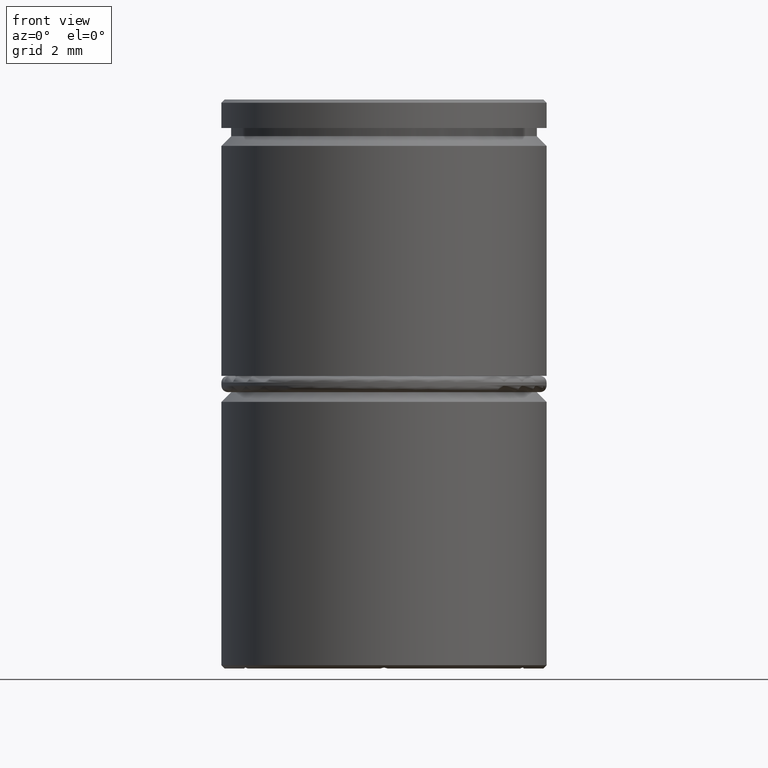
[diagram: clean part render]
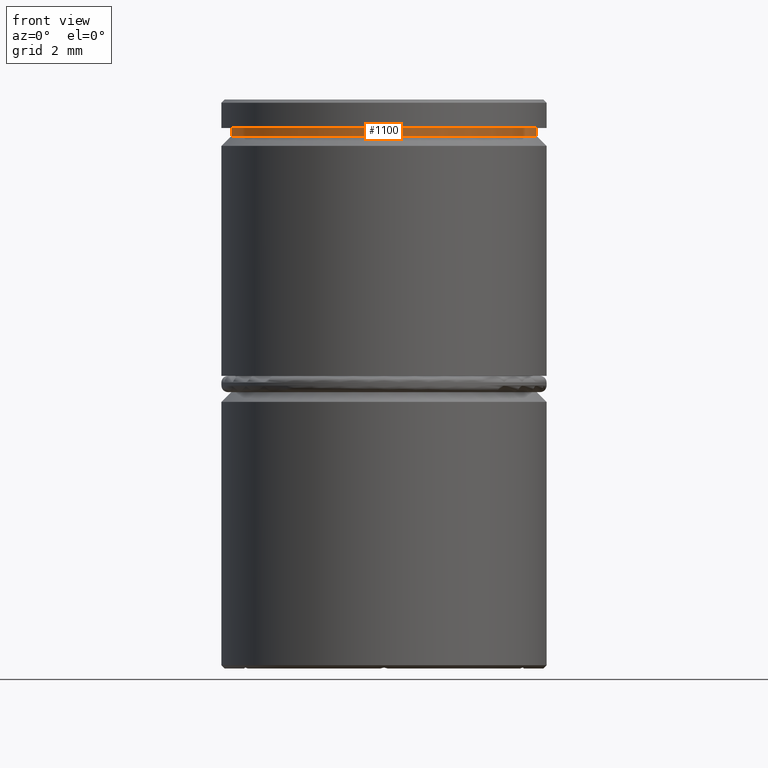
[diagram: same view with one face highlighted and labeled with its STEP entity id]
A machine part, front view. The second image highlights one B-rep face of the part: STEP entity #1100.
In plain terms, the highlighted cylindrical surface (partial cylindrical patch) has radius 4.7 mm, axis along (-0, -0, 1).
Its self-contained STEP definition (entity closure, byte-faithful):
#63 = FACE_OUTER_BOUND ( 'NONE', #602, .T. ) ;
#70 = DIRECTION ( 'NONE',  ( -0.000000000000000000, -0.000000000000000000, 1.000000000000000000 ) ) ;
#104 = DIRECTION ( 'NONE',  ( -0.000000000000000000, -0.000000000000000000, 1.000000000000000000 ) ) ;
#151 = DIRECTION ( 'NONE',  ( -0.000000000000000000, -0.000000000000000000, 1.000000000000000000 ) ) ;
#158 = CARTESIAN_POINT ( 'NONE',  ( -4.700000000000000178, 5.755839955992559655E-16, -1.125000000000000222 ) ) ;
#160 = VECTOR ( 'NONE', #104, 1000.000000000000000 ) ;
#167 = DIRECTION ( 'NONE',  ( 1.000000000000000000, 0.000000000000000000, 0.000000000000000000 ) ) ;
#364 = CYLINDRICAL_SURFACE ( 'NONE', #882, 4.700000000000000178 ) ;
#391 = EDGE_CURVE ( 'NONE', #1250, #1037, #613, .T. ) ;
#394 = CARTESIAN_POINT ( 'NONE',  ( 4.700000000000000178, 0.000000000000000000, -1.125000000000000222 ) ) ;
#397 = EDGE_CURVE ( 'NONE', #1037, #833, #926, .T. ) ;
#473 = AXIS2_PLACEMENT_3D ( 'NONE', #1160, #1273, #1168 ) ;
#545 = LINE ( 'NONE', #1050, #160 ) ;
#559 = CARTESIAN_POINT ( 'NONE',  ( 4.700000000000000178, 0.000000000000000000, -0.8749999999999998890 ) ) ;
#569 = ORIENTED_EDGE ( 'NONE', *, *, #790, .F. ) ;
#592 = CARTESIAN_POINT ( 'NONE',  ( -4.700000000000000178, 5.755839955992559655E-16, -0.8749999999999998890 ) ) ;
#602 = EDGE_LOOP ( 'NONE', ( #569, #930, #759, #679 ) ) ;
#610 = AXIS2_PLACEMENT_3D ( 'NONE', #1216, #896, #167 ) ;
#613 = CIRCLE ( 'NONE', #473, 4.700000000000000178 ) ;
#679 = ORIENTED_EDGE ( 'NONE', *, *, #1264, .F. ) ;
#714 = CARTESIAN_POINT ( 'NONE',  ( 4.700000000000000178, 0.000000000000000000, 0.000000000000000000 ) ) ;
#759 = ORIENTED_EDGE ( 'NONE', *, *, #397, .T. ) ;
#790 = EDGE_CURVE ( 'NONE', #1250, #1295, #545, .T. ) ;
#833 = VERTEX_POINT ( 'NONE', #559 ) ;
#882 = AXIS2_PLACEMENT_3D ( 'NONE', #1124, #151, #917 ) ;
#896 = DIRECTION ( 'NONE',  ( -0.000000000000000000, -0.000000000000000000, 1.000000000000000000 ) ) ;
#917 = DIRECTION ( 'NONE',  ( 1.000000000000000000, 0.000000000000000000, 0.000000000000000000 ) ) ;
#926 = LINE ( 'NONE', #714, #1278 ) ;
#930 = ORIENTED_EDGE ( 'NONE', *, *, #391, .T. ) ;
#995 = CIRCLE ( 'NONE', #610, 4.700000000000000178 ) ;
#1037 = VERTEX_POINT ( 'NONE', #394 ) ;
#1050 = CARTESIAN_POINT ( 'NONE',  ( -4.700000000000000178, 5.755839955992559655E-16, 0.000000000000000000 ) ) ;
#1100 = ADVANCED_FACE ( 'NONE', ( #63 ), #364, .T. ) ;
#1124 = CARTESIAN_POINT ( 'NONE',  ( 0.000000000000000000, 0.000000000000000000, 0.000000000000000000 ) ) ;
#1160 = CARTESIAN_POINT ( 'NONE',  ( 0.000000000000000000, 0.000000000000000000, -1.125000000000000222 ) ) ;
#1168 = DIRECTION ( 'NONE',  ( 1.000000000000000000, 0.000000000000000000, 0.000000000000000000 ) ) ;
#1216 = CARTESIAN_POINT ( 'NONE',  ( 0.000000000000000000, 0.000000000000000000, -0.8749999999999998890 ) ) ;
#1250 = VERTEX_POINT ( 'NONE', #158 ) ;
#1264 = EDGE_CURVE ( 'NONE', #1295, #833, #995, .T. ) ;
#1273 = DIRECTION ( 'NONE',  ( -0.000000000000000000, -0.000000000000000000, 1.000000000000000000 ) ) ;
#1278 = VECTOR ( 'NONE', #70, 1000.000000000000000 ) ;
#1295 = VERTEX_POINT ( 'NONE', #592 ) ;